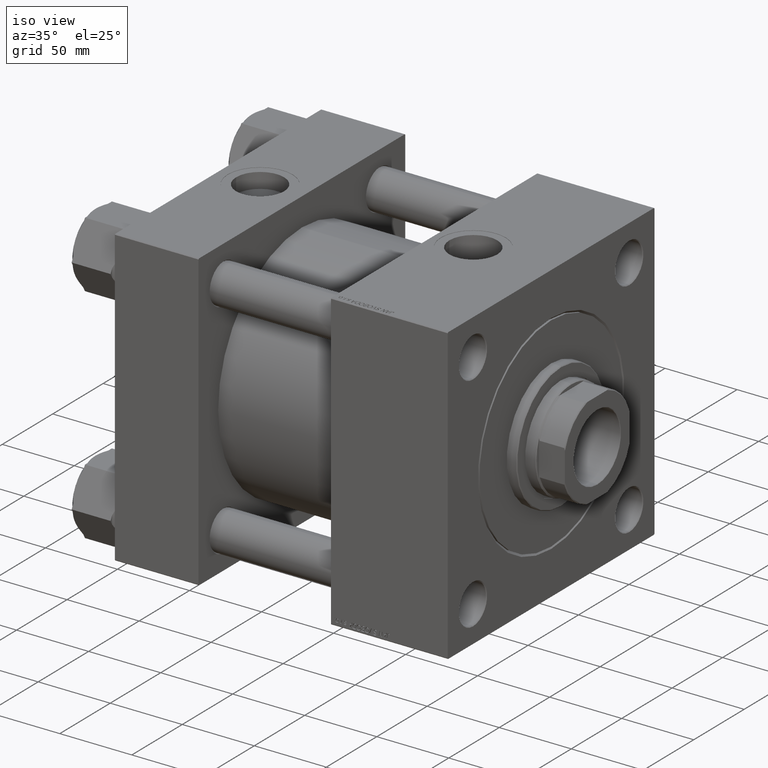
[diagram: clean part render]
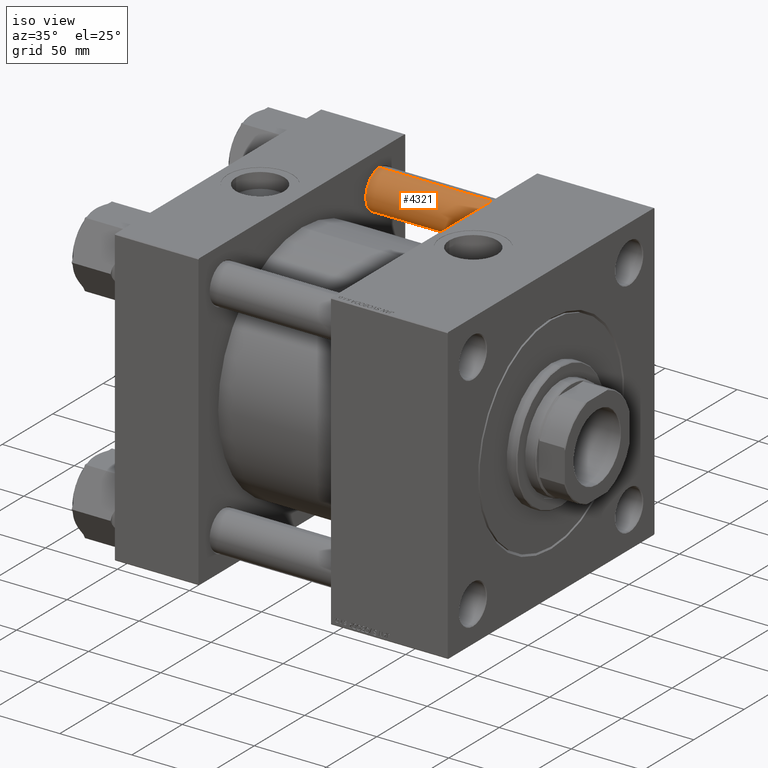
[diagram: same view with one face highlighted and labeled with its STEP entity id]
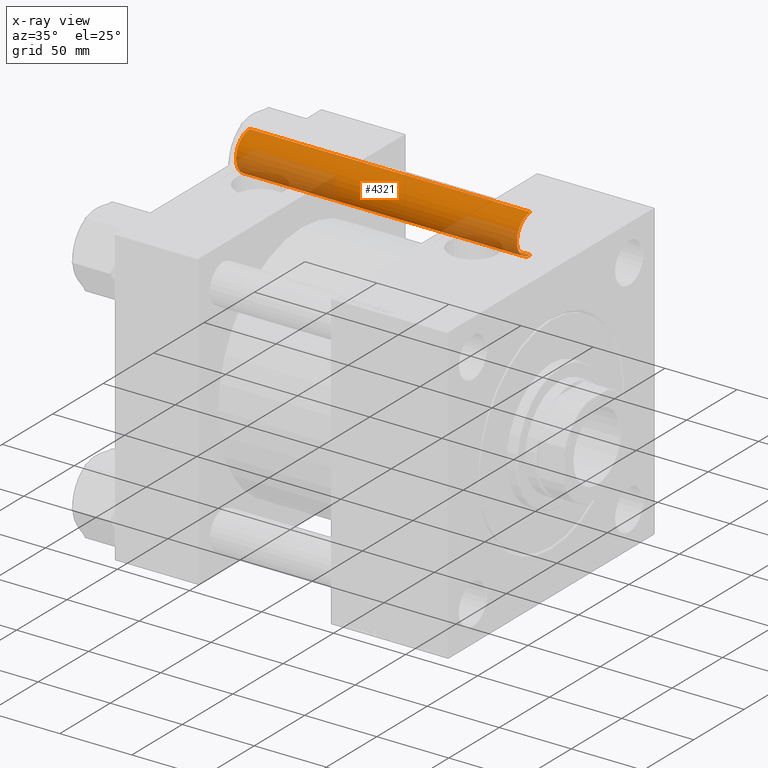
[diagram: x-ray of the same camera — body ghosted, the highlighted face saturated]
A machine part, iso view. The second image highlights one B-rep face of the part: STEP entity #4321.
The next image is the same camera in x-ray: the body ghosted, the highlighted face saturated — about 31% of this face is hidden behind the body in this view.
In plain terms, the highlighted cylindrical surface (edge-blend (fillet) strip) has radius 13.5 mm, axis along (-1, -0, 0).
Its self-contained STEP definition (entity closure, byte-faithful):
#48 = CIRCLE ( 'NONE', #28734, 13.50000000000000000 ) ;
#716 = CARTESIAN_POINT ( 'NONE',  ( 0.000000000000000000, 0.000000000000000000, 0.4999999999999726885 ) ) ;
#1054 = EDGE_LOOP ( 'NONE', ( #29060, #19271, #7295, #9554 ) ) ;
#2255 = CARTESIAN_POINT ( 'NONE',  ( 13.50000000000000000, 1.653273178848926867E-15, 0.4999999999999726885 ) ) ;
#3742 = EDGE_CURVE ( 'NONE', #40034, #8351, #48028, .T. ) ;
#3783 = AXIS2_PLACEMENT_3D ( 'NONE', #716, #47664, #12522 ) ;
#4321 = ADVANCED_FACE ( 'NONE', ( #48867 ), #29373, .T. ) ;
#6648 = CARTESIAN_POINT ( 'NONE',  ( 13.50000000000000000, 1.653273178848926867E-15, 195.5000000000000284 ) ) ;
#7295 = ORIENTED_EDGE ( 'NONE', *, *, #31767, .T. ) ;
#8351 = VERTEX_POINT ( 'NONE', #2255 ) ;
#8398 = VECTOR ( 'NONE', #11946, 1000.000000000000000 ) ;
#9554 = ORIENTED_EDGE ( 'NONE', *, *, #3742, .T. ) ;
#11178 = AXIS2_PLACEMENT_3D ( 'NONE', #21925, #37580, #21426 ) ;
#11946 = DIRECTION ( 'NONE',  ( -0.000000000000000000, -0.000000000000000000, -1.000000000000000000 ) ) ;
#12522 = DIRECTION ( 'NONE',  ( 1.000000000000000000, 0.000000000000000000, 0.000000000000000000 ) ) ;
#12706 = LINE ( 'NONE', #47082, #8398 ) ;
#12999 = DIRECTION ( 'NONE',  ( 0.000000000000000000, 0.000000000000000000, -1.000000000000000000 ) ) ;
#13619 = VERTEX_POINT ( 'NONE', #6648 ) ;
#14974 = CARTESIAN_POINT ( 'NONE',  ( 13.50000000000000000, 1.653273178848926867E-15, 196.0000000000000000 ) ) ;
#16460 = VECTOR ( 'NONE', #42182, 1000.000000000000000 ) ;
#19271 = ORIENTED_EDGE ( 'NONE', *, *, #24139, .T. ) ;
#19814 = CARTESIAN_POINT ( 'NONE',  ( -13.50000000000000000, 0.000000000000000000, 0.4999999999999726885 ) ) ;
#21426 = DIRECTION ( 'NONE',  ( -1.000000000000000000, 0.000000000000000000, 0.000000000000000000 ) ) ;
#21925 = CARTESIAN_POINT ( 'NONE',  ( 0.000000000000000000, 0.000000000000000000, 196.0000000000000000 ) ) ;
#24139 = EDGE_CURVE ( 'NONE', #13619, #30696, #48, .T. ) ;
#24785 = EDGE_CURVE ( 'NONE', #13619, #8351, #27024, .T. ) ;
#27024 = LINE ( 'NONE', #14974, #16460 ) ;
#28734 = AXIS2_PLACEMENT_3D ( 'NONE', #48143, #12999, #43277 ) ;
#29060 = ORIENTED_EDGE ( 'NONE', *, *, #24785, .F. ) ;
#29373 = CYLINDRICAL_SURFACE ( 'NONE', #11178, 13.50000000000000000 ) ;
#30696 = VERTEX_POINT ( 'NONE', #45329 ) ;
#31767 = EDGE_CURVE ( 'NONE', #30696, #40034, #12706, .T. ) ;
#37580 = DIRECTION ( 'NONE',  ( -0.000000000000000000, -0.000000000000000000, -1.000000000000000000 ) ) ;
#40034 = VERTEX_POINT ( 'NONE', #19814 ) ;
#42182 = DIRECTION ( 'NONE',  ( -0.000000000000000000, -0.000000000000000000, -1.000000000000000000 ) ) ;
#43277 = DIRECTION ( 'NONE',  ( 1.000000000000000000, 0.000000000000000000, 0.000000000000000000 ) ) ;
#45329 = CARTESIAN_POINT ( 'NONE',  ( -13.50000000000000000, 0.000000000000000000, 195.5000000000000284 ) ) ;
#47082 = CARTESIAN_POINT ( 'NONE',  ( -13.50000000000000000, 0.000000000000000000, 196.0000000000000000 ) ) ;
#47664 = DIRECTION ( 'NONE',  ( -0.000000000000000000, -0.000000000000000000, 1.000000000000000000 ) ) ;
#48028 = CIRCLE ( 'NONE', #3783, 13.50000000000000000 ) ;
#48143 = CARTESIAN_POINT ( 'NONE',  ( 0.000000000000000000, 0.000000000000000000, 195.5000000000000284 ) ) ;
#48867 = FACE_OUTER_BOUND ( 'NONE', #1054, .T. ) ;